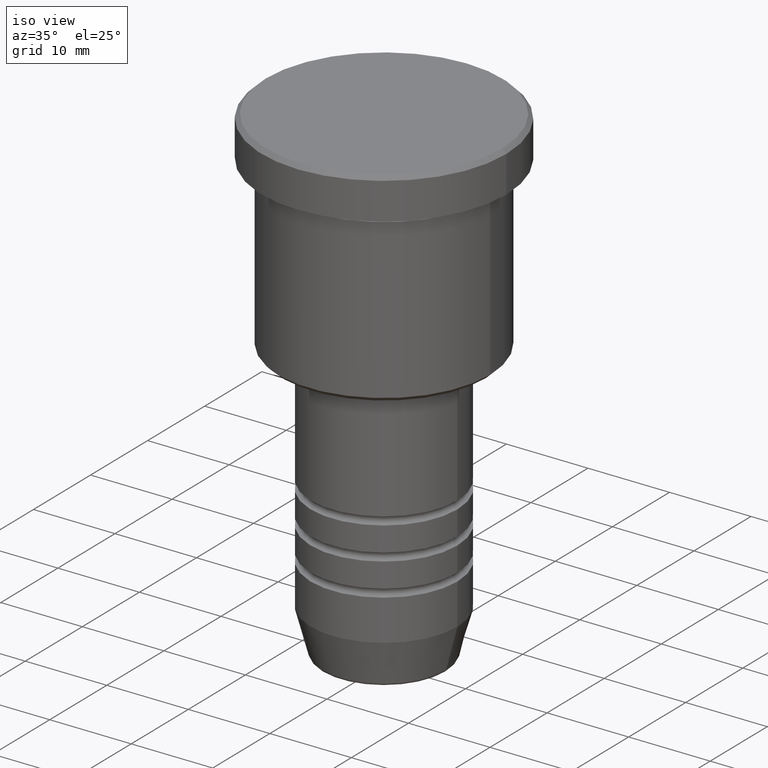
[diagram: clean part render]
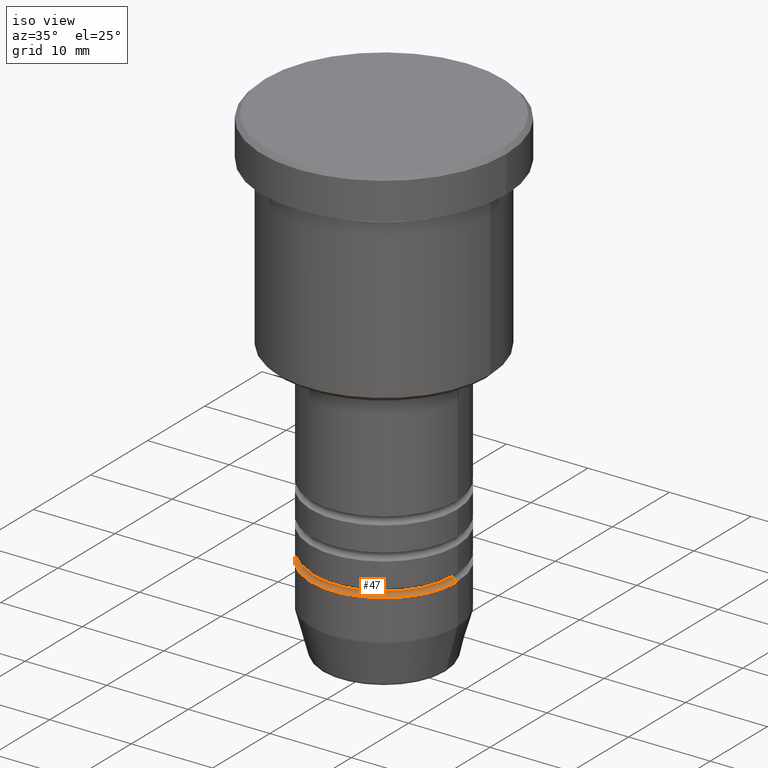
[diagram: same view with one face highlighted and labeled with its STEP entity id]
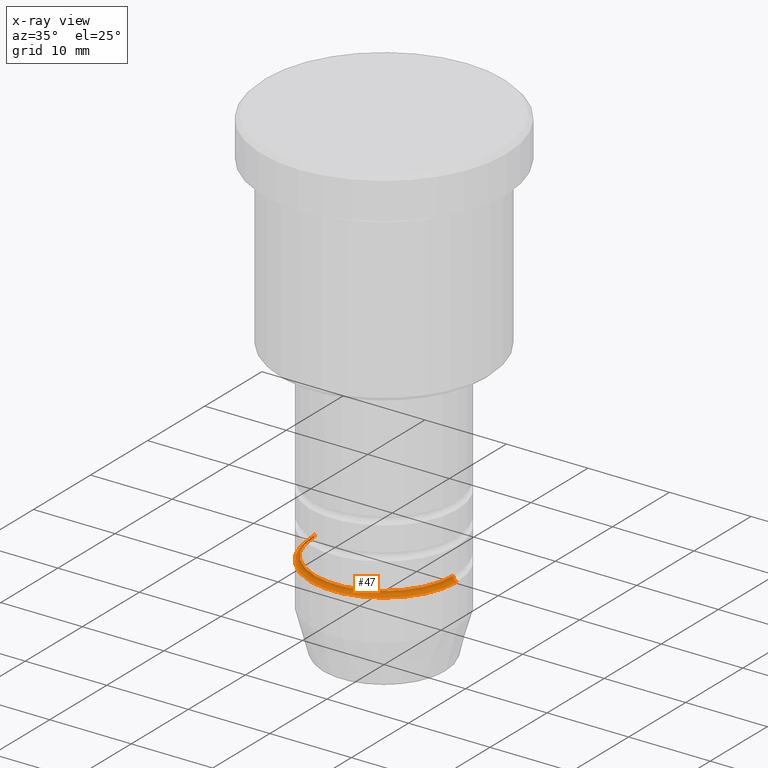
[diagram: x-ray of the same camera — body ghosted, the highlighted face saturated]
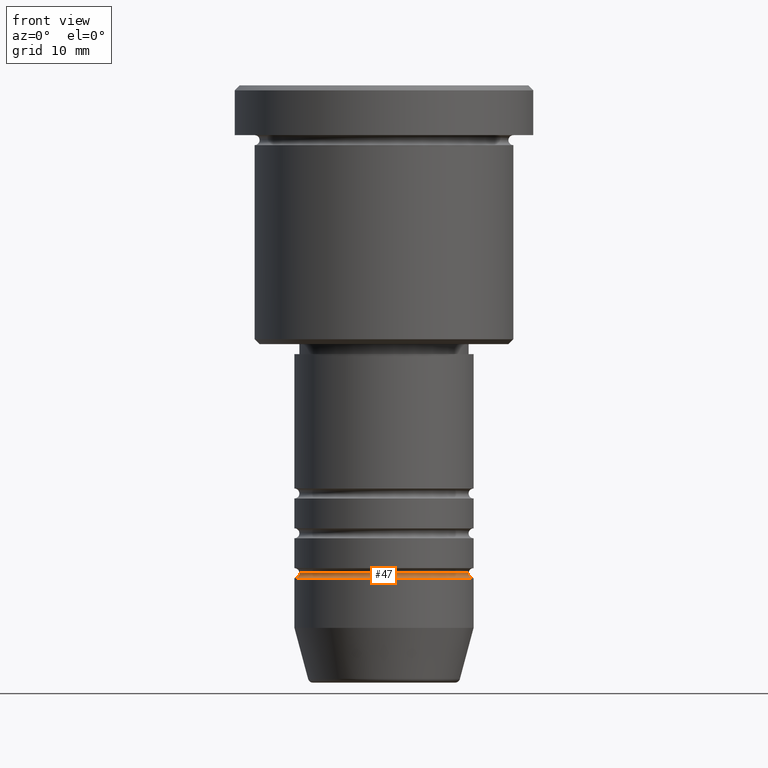
[diagram: same view with one face highlighted and labeled with its STEP entity id]
A machine part, iso view. The second image highlights one B-rep face of the part: STEP entity #47.
The next image is the same camera in x-ray: the body ghosted, the highlighted face saturated — about 2% of this face is hidden behind the body in this view.
A second angle (front view) of the same face is appended — the face is thin or edge-on in the first view.
In plain terms, the highlighted toroidal blend (fillet) surface has major radius 9 mm and minor (blend) radius 0.5 mm.
Its self-contained STEP definition (entity closure, byte-faithful):
#10 = AXIS2_PLACEMENT_3D ( 'NONE', #1172, #981, #1062 ) ;
#41 = CARTESIAN_POINT ( 'NONE',  ( 9.000000000000000000, 0.000000000000000000, -49.50000000000000000 ) ) ;
#44 = DIRECTION ( 'NONE',  ( 1.224646799147353207E-16, 1.000000000000000000, 0.000000000000000000 ) ) ;
#47 = ADVANCED_FACE ( 'NONE', ( #540 ), #849, .F. ) ;
#83 = DIRECTION ( 'NONE',  ( -0.000000000000000000, -0.000000000000000000, 1.000000000000000000 ) ) ;
#146 = CARTESIAN_POINT ( 'NONE',  ( -8.500000000000001776, 1.071565949253933927E-15, -48.99999999999999289 ) ) ;
#167 = CARTESIAN_POINT ( 'NONE',  ( 0.000000000000000000, 0.000000000000000000, -49.50000000000000000 ) ) ;
#170 = CARTESIAN_POINT ( 'NONE',  ( 9.000000000000003553, 0.000000000000000000, -48.99999999999999289 ) ) ;
#221 = CIRCLE ( 'NONE', #1048, 8.500000000000001776 ) ;
#256 = DIRECTION ( 'NONE',  ( 1.000000000000000000, 0.000000000000000000, 0.000000000000000000 ) ) ;
#266 = CARTESIAN_POINT ( 'NONE',  ( 0.000000000000000000, 0.000000000000000000, -48.99999999999999289 ) ) ;
#322 = EDGE_CURVE ( 'NONE', #387, #1144, #1158, .T. ) ;
#347 = DIRECTION ( 'NONE',  ( 0.000000000000000000, -1.000000000000000000, 0.000000000000000000 ) ) ;
#387 = VERTEX_POINT ( 'NONE', #146 ) ;
#409 = EDGE_CURVE ( 'NONE', #924, #968, #695, .T. ) ;
#411 = CARTESIAN_POINT ( 'NONE',  ( -9.000000000000000000, 1.102182119232617714E-15, -49.50000000000000000 ) ) ;
#469 = CARTESIAN_POINT ( 'NONE',  ( 8.500000000000001776, 0.000000000000000000, -48.99999999999999289 ) ) ;
#529 = DIRECTION ( 'NONE',  ( 0.000000000000000000, 0.000000000000000000, -1.000000000000000000 ) ) ;
#540 = FACE_OUTER_BOUND ( 'NONE', #757, .T. ) ;
#591 = EDGE_CURVE ( 'NONE', #1144, #968, #602, .T. ) ;
#602 = CIRCLE ( 'NONE', #786, 9.000000000000000000 ) ;
#607 = AXIS2_PLACEMENT_3D ( 'NONE', #1105, #44, #744 ) ;
#667 = ORIENTED_EDGE ( 'NONE', *, *, #409, .F. ) ;
#695 = CIRCLE ( 'NONE', #997, 0.5000000000000004441 ) ;
#744 = DIRECTION ( 'NONE',  ( -1.000000000000000000, 1.224646799147353454E-16, 0.000000000000000000 ) ) ;
#757 = EDGE_LOOP ( 'NONE', ( #1011, #881, #843, #667 ) ) ;
#786 = AXIS2_PLACEMENT_3D ( 'NONE', #167, #1061, #256 ) ;
#801 = DIRECTION ( 'NONE',  ( 1.000000000000000000, 0.000000000000000000, 0.000000000000000000 ) ) ;
#843 = ORIENTED_EDGE ( 'NONE', *, *, #591, .T. ) ;
#849 = TOROIDAL_SURFACE ( 'NONE', #10, 9.000000000000003553, 0.5000000000000000000 ) ;
#881 = ORIENTED_EDGE ( 'NONE', *, *, #322, .T. ) ;
#924 = VERTEX_POINT ( 'NONE', #469 ) ;
#968 = VERTEX_POINT ( 'NONE', #41 ) ;
#981 = DIRECTION ( 'NONE',  ( -0.000000000000000000, -0.000000000000000000, 1.000000000000000000 ) ) ;
#997 = AXIS2_PLACEMENT_3D ( 'NONE', #170, #347, #529 ) ;
#1011 = ORIENTED_EDGE ( 'NONE', *, *, #1174, .F. ) ;
#1048 = AXIS2_PLACEMENT_3D ( 'NONE', #266, #83, #801 ) ;
#1061 = DIRECTION ( 'NONE',  ( -0.000000000000000000, -0.000000000000000000, 1.000000000000000000 ) ) ;
#1062 = DIRECTION ( 'NONE',  ( 1.000000000000000000, 0.000000000000000000, 0.000000000000000000 ) ) ;
#1105 = CARTESIAN_POINT ( 'NONE',  ( -9.000000000000003553, 1.102182119232618108E-15, -48.99999999999999289 ) ) ;
#1144 = VERTEX_POINT ( 'NONE', #411 ) ;
#1158 = CIRCLE ( 'NONE', #607, 0.5000000000000004441 ) ;
#1172 = CARTESIAN_POINT ( 'NONE',  ( 0.000000000000000000, 0.000000000000000000, -48.99999999999999289 ) ) ;
#1174 = EDGE_CURVE ( 'NONE', #387, #924, #221, .T. ) ;